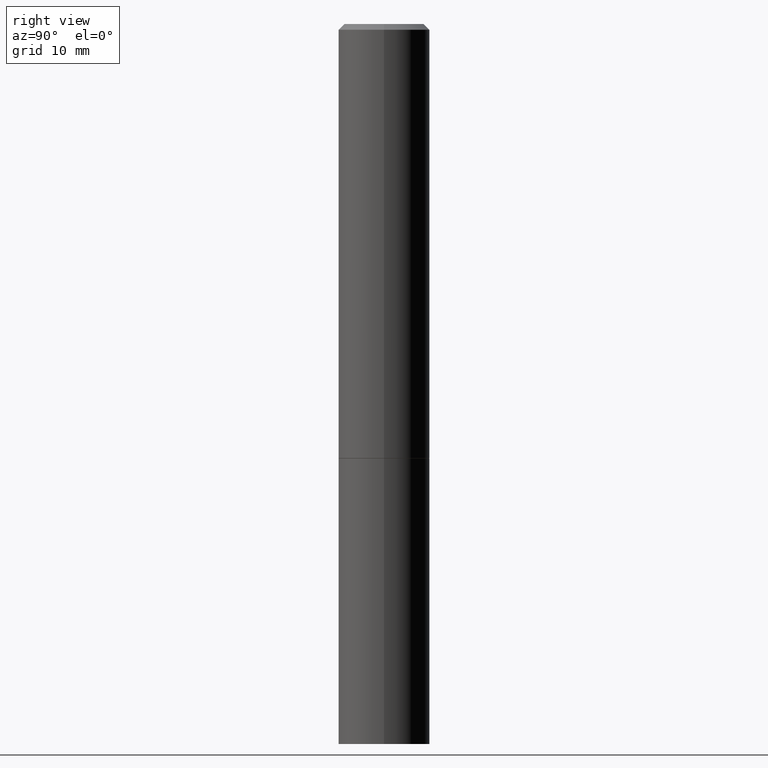
[diagram: clean part render]
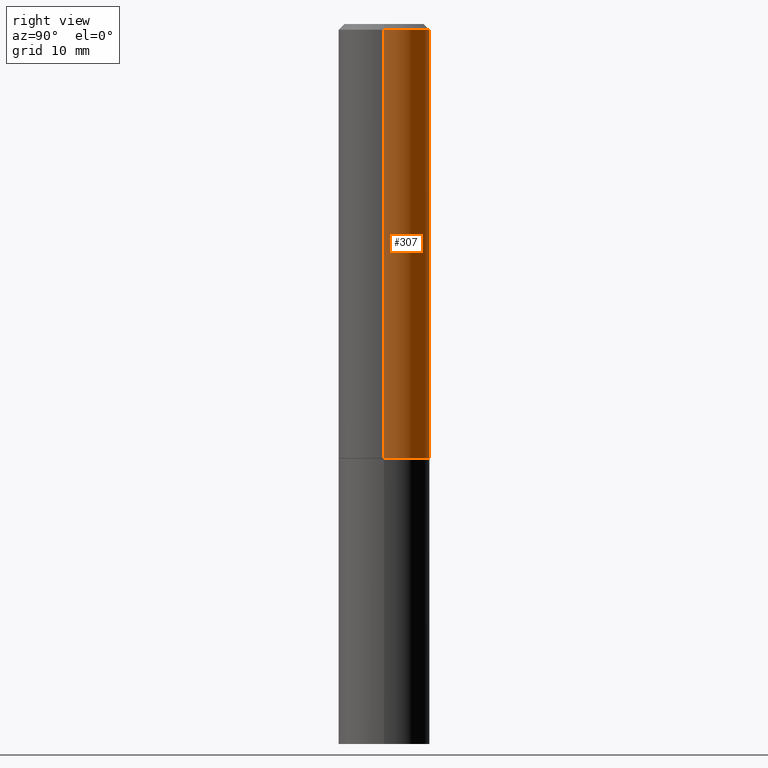
[diagram: same view with one face highlighted and labeled with its STEP entity id]
A machine part, right view. The second image highlights one B-rep face of the part: STEP entity #307.
In plain terms, the highlighted cylindrical surface (partial cylindrical patch) has radius 4.0005 mm, axis along (-0, 0, 1).
Its self-contained STEP definition (entity closure, byte-faithful):
#7 = VERTEX_POINT ( 'NONE', #11 ) ;
#11 = CARTESIAN_POINT ( 'NONE',  ( 0.1574999999999999456, -6.319581223306091410E-15, -1.495000000000000329 ) ) ;
#23 = CARTESIAN_POINT ( 'NONE',  ( 4.890937612370281041E-31, -6.982962677686302702E-17, -0.02000000000000003511 ) ) ;
#53 = DIRECTION ( 'NONE',  ( 1.000000000000000000, -6.982962677686266711E-15, 0.000000000000000000 ) ) ;
#59 = CARTESIAN_POINT ( 'NONE',  ( 0.000000000000000000, 0.000000000000000000, 0.000000000000000000 ) ) ;
#64 = ORIENTED_EDGE ( 'NONE', *, *, #106, .T. ) ;
#80 = CARTESIAN_POINT ( 'NONE',  ( -0.1574999999999999456, -1.525692305351525222E-15, -1.495000000000000329 ) ) ;
#91 = AXIS2_PLACEMENT_3D ( 'NONE', #23, #312, #53 ) ;
#106 = EDGE_CURVE ( 'NONE', #342, #344, #128, .T. ) ;
#110 = ORIENTED_EDGE ( 'NONE', *, *, #229, .T. ) ;
#113 = DIRECTION ( 'NONE',  ( 1.000000000000000000, -6.982962677686266711E-15, 4.876176775795935793E-29 ) ) ;
#128 = LINE ( 'NONE', #292, #136 ) ;
#132 = VECTOR ( 'NONE', #276, 39.37007874015748143 ) ;
#136 = VECTOR ( 'NONE', #214, 39.37007874015748143 ) ;
#169 = CYLINDRICAL_SURFACE ( 'NONE', #201, 0.1574999999999998901 ) ;
#199 = CARTESIAN_POINT ( 'NONE',  ( 0.1574999999999998901, -1.099816621735586297E-15, 7.679978421878593829E-30 ) ) ;
#201 = AXIS2_PLACEMENT_3D ( 'NONE', #59, #285, #113 ) ;
#202 = DIRECTION ( 'NONE',  ( -2.445468806185136597E-29, 3.491481338843145583E-15, 1.000000000000000000 ) ) ;
#204 = DIRECTION ( 'NONE',  ( 1.000000000000000000, -6.982962677686270655E-15, 0.000000000000000000 ) ) ;
#214 = DIRECTION ( 'NONE',  ( -2.445468806185136877E-29, 3.491481338843145188E-15, 1.000000000000000000 ) ) ;
#223 = CARTESIAN_POINT ( 'NONE',  ( 3.655975865246779683E-29, -5.219764601570503930E-15, -1.495000000000000329 ) ) ;
#228 = CARTESIAN_POINT ( 'NONE',  ( 0.1574999999999997791, -1.150358061425877894E-15, -0.02000000000000003511 ) ) ;
#229 = EDGE_CURVE ( 'NONE', #7, #342, #302, .T. ) ;
#248 = ORIENTED_EDGE ( 'NONE', *, *, #347, .F. ) ;
#258 = AXIS2_PLACEMENT_3D ( 'NONE', #223, #202, #204 ) ;
#260 = VERTEX_POINT ( 'NONE', #228 ) ;
#276 = DIRECTION ( 'NONE',  ( -2.445468806185136877E-29, 3.491481338843145188E-15, 1.000000000000000000 ) ) ;
#284 = ORIENTED_EDGE ( 'NONE', *, *, #349, .F. ) ;
#285 = DIRECTION ( 'NONE',  ( -2.445468806185136597E-29, 3.491481338843145583E-15, 1.000000000000000000 ) ) ;
#287 = CIRCLE ( 'NONE', #91, 0.1574999999999997791 ) ;
#292 = CARTESIAN_POINT ( 'NONE',  ( -0.1574999999999998901, 1.119104808822157012E-15, -7.747322767151471379E-30 ) ) ;
#302 = CIRCLE ( 'NONE', #258, 0.1574999999999999456 ) ;
#307 = ADVANCED_FACE ( 'NONE', ( #316 ), #169, .T. ) ;
#311 = EDGE_LOOP ( 'NONE', ( #110, #64, #284, #248 ) ) ;
#312 = DIRECTION ( 'NONE',  ( -2.445468806185136597E-29, 3.491481338843145583E-15, 1.000000000000000000 ) ) ;
#316 = FACE_OUTER_BOUND ( 'NONE', #311, .T. ) ;
#337 = LINE ( 'NONE', #199, #132 ) ;
#342 = VERTEX_POINT ( 'NONE', #80 ) ;
#344 = VERTEX_POINT ( 'NONE', #365 ) ;
#347 = EDGE_CURVE ( 'NONE', #7, #260, #337, .T. ) ;
#349 = EDGE_CURVE ( 'NONE', #260, #344, #287, .T. ) ;
#365 = CARTESIAN_POINT ( 'NONE',  ( -0.1574999999999997791, 1.029986994958722407E-15, -0.02000000000000003511 ) ) ;